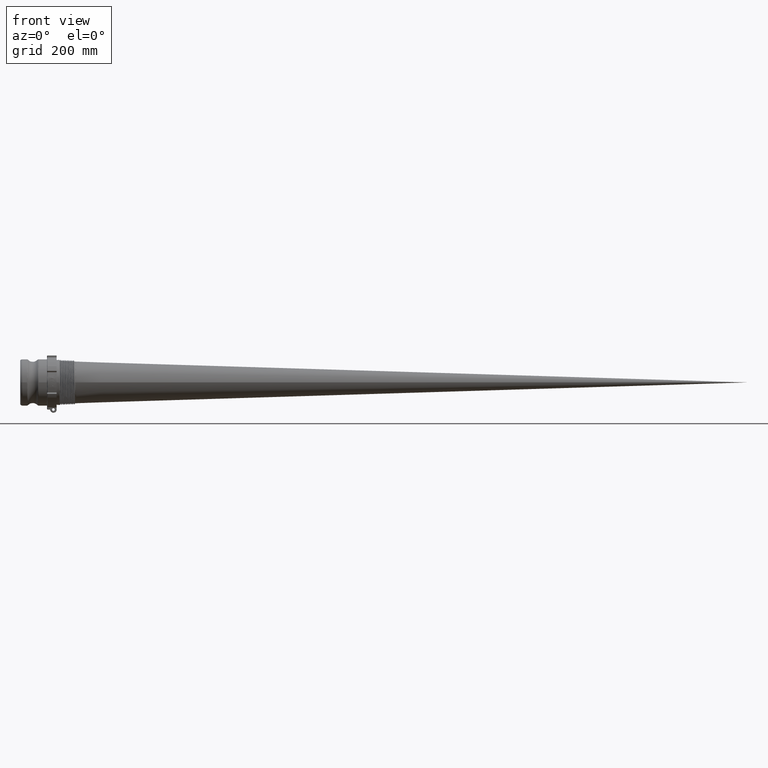
[diagram: clean part render]
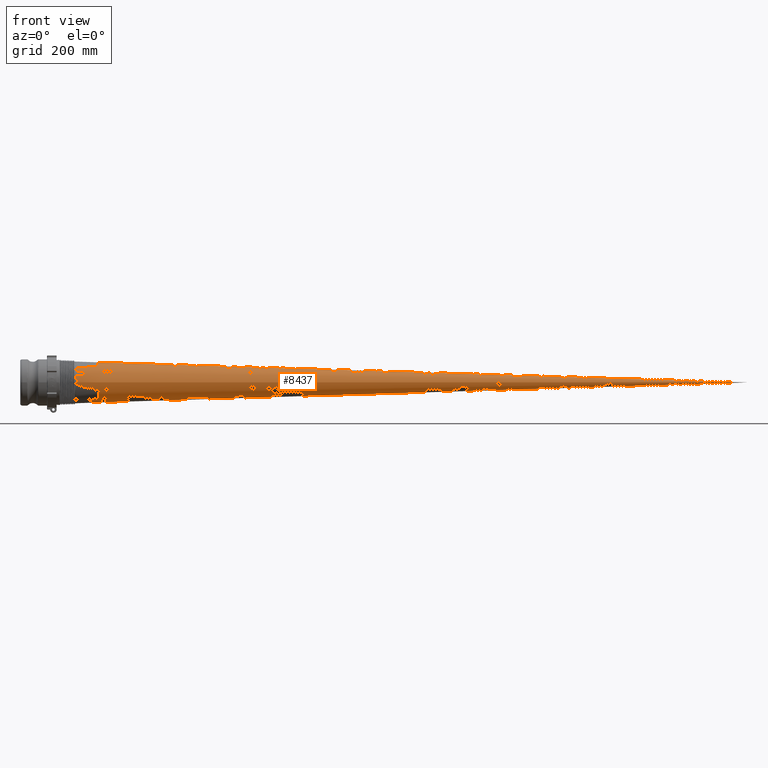
[diagram: same view with one face highlighted and labeled with its STEP entity id]
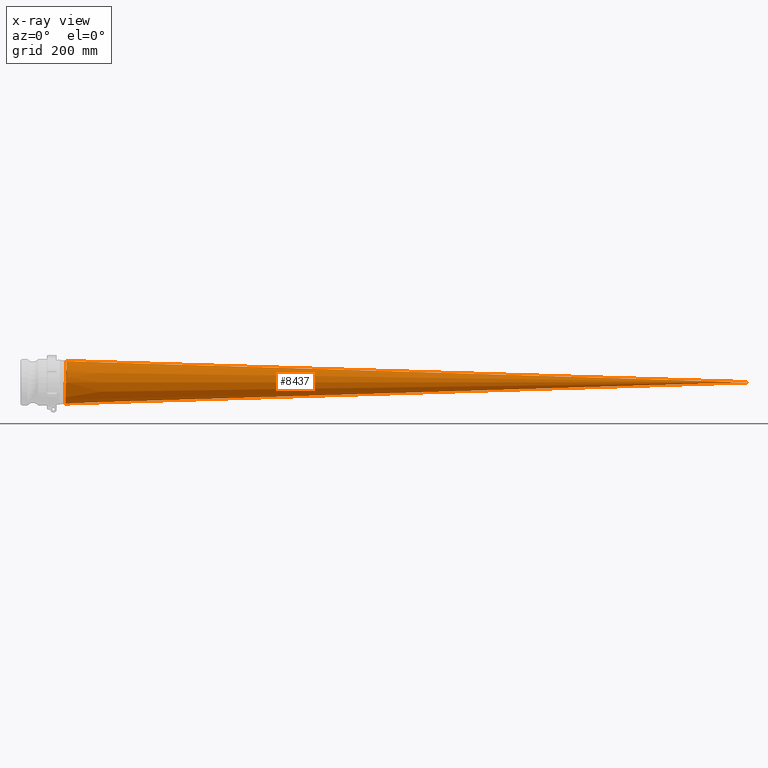
[diagram: x-ray of the same camera — body ghosted, the highlighted face saturated]
A machine part, front view. The second image highlights one B-rep face of the part: STEP entity #8437.
The next image is the same camera in x-ray: the body ghosted, the highlighted face saturated — about 0% of this face is hidden behind the body in this view.
In plain terms, the highlighted conical surface has half-angle 1.78 deg.
Its self-contained STEP definition (entity closure, byte-faithful):
#841=FACE_OUTER_BOUND('',#1354,.T.);
#1354=EDGE_LOOP('',(#5724,#5725,#5726));
#1910=B_SPLINE_CURVE_WITH_KNOTS('',3,(#11374,#11375,#11376,#11377,#11378,
#11379,#11380,#11381,#11382,#11383,#11384,#11385,#11386,#11387,#11388,#11389,
#11390),.UNSPECIFIED.,.F.,.F.,(4,1,1,1,1,1,1,1,1,1,1,1,1,1,4),(28.2743338823081,
28.3502077075871,28.8475797726325,29.3449518376779,29.8423239027233,30.3396959677687,
30.837068032814,31.3344400978594,31.8318121629048,32.3291842279502,32.8265562929956,
33.323928358041,33.8213004230864,34.3186724881318,34.5575191894877),
 .UNSPECIFIED.);
#2450=LINE('',#11371,#2975);
#2451=LINE('',#11373,#2976);
#2975=VECTOR('',#9609,1.63906501370325);
#2976=VECTOR('',#9610,1.63906501370325);
#3500=VERTEX_POINT('',#11369);
#3501=VERTEX_POINT('',#11370);
#3502=VERTEX_POINT('',#11372);
#4376=EDGE_CURVE('',#3500,#3501,#2450,.T.);
#4377=EDGE_CURVE('',#3500,#3502,#2451,.T.);
#4378=EDGE_CURVE('',#3502,#3501,#1910,.T.);
#5724=ORIENTED_EDGE('',*,*,#4376,.F.);
#5725=ORIENTED_EDGE('',*,*,#4377,.T.);
#5726=ORIENTED_EDGE('',*,*,#4378,.T.);
#8420=CONICAL_SURFACE('',#8986,1.63906501370325,0.031066860685499);
#8437=ADVANCED_FACE('',(#841),#8420,.T.);
#8986=AXIS2_PLACEMENT_3D('',#11368,#9607,#9608);
#9607=DIRECTION('center_axis',(1.,0.,0.));
#9608=DIRECTION('ref_axis',(0.,1.,0.));
#9609=DIRECTION('',(0.999517463895417,-0.0310618635640874,-3.80398117893114E-18));
#9610=DIRECTION('',(-0.999517463895417,0.0310618635640874,3.80398117893114E-18));
#11368=CARTESIAN_POINT('Origin',(0.613479423296351,0.,0.));
#11369=CARTESIAN_POINT('',(0.720964101615137,-1.64240529992512,8.04733551314357E-15));
#11370=CARTESIAN_POINT('',(0.836954766836045,-1.64600992550491,3.14561957683411E-14));
#11371=CARTESIAN_POINT('',(0.613479423296351,-1.63906501370325,-2.0072757226261E-16));
#11372=CARTESIAN_POINT('',(0.711954766836045,-1.64212531809607,3.09797539850464E-14));
#11373=CARTESIAN_POINT('',(0.613479423296351,-1.63906501370325,-2.0072757226261E-16));
#11374=CARTESIAN_POINT('Ctrl Pts',(0.711954766836045,-1.64219102398399,
-3.55922931584287E-5));
#11375=CARTESIAN_POINT('Ctrl Pts',(0.712457920767064,-1.64224623818077,
-0.0415613582260768));
#11376=CARTESIAN_POINT('Ctrl Pts',(0.71625937564424,-1.6307029713282,-0.355285862453547));
#11377=CARTESIAN_POINT('Ctrl Pts',(0.723359131467574,-1.43814818585694,
-0.928343931896038));
#11378=CARTESIAN_POINT('Ctrl Pts',(0.73325403430605,-0.821125742543461,
-1.50231235526954));
#11379=CARTESIAN_POINT('Ctrl Pts',(0.743148937144524,-0.00485882888836625,
-1.71238539252706));
#11380=CARTESIAN_POINT('Ctrl Pts',(0.753043839982998,0.812891285676746,
-1.50751210500215));
#11381=CARTESIAN_POINT('Ctrl Pts',(0.762938742821474,1.43392981802108,-0.937191613145417));
#11382=CARTESIAN_POINT('Ctrl Pts',(0.772833645659948,1.70766413651114,-0.13951379408674));
#11383=CARTESIAN_POINT('Ctrl Pts',(0.782728548498423,1.56762022358848,0.692275957240927));
#11384=CARTESIAN_POINT('Ctrl Pts',(0.792623451336896,1.04758524333501,1.35659234637332));
#11385=CARTESIAN_POINT('Ctrl Pts',(0.802518354175373,0.273456166669145,
1.6923646287136));
#11386=CARTESIAN_POINT('Ctrl Pts',(0.812413257013845,-0.567239011517326,
1.61808995304506));
#11387=CARTESIAN_POINT('Ctrl Pts',(0.822308159852323,-1.27076876803993,
1.15161669692345));
#11388=CARTESIAN_POINT('Ctrl Pts',(0.830488663126386,-1.5979929086034,0.535066957757365));
#11389=CARTESIAN_POINT('Ctrl Pts',(0.835370865454295,-1.64583612882128,
0.131081778956618));
#11390=CARTESIAN_POINT('Ctrl Pts',(0.836954766836045,-1.64587155307217,
4.75258121222558E-6));